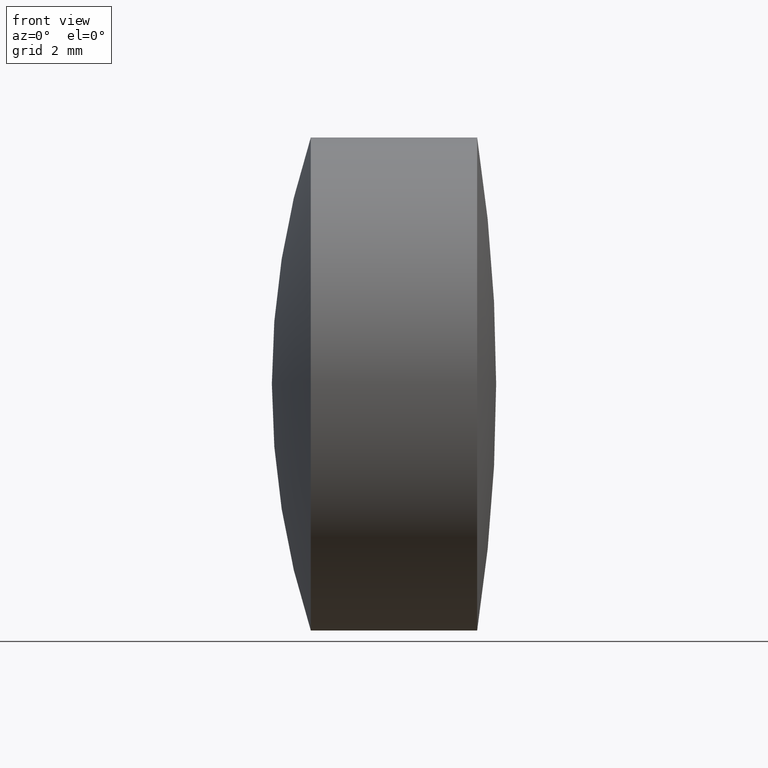
[diagram: clean part render]
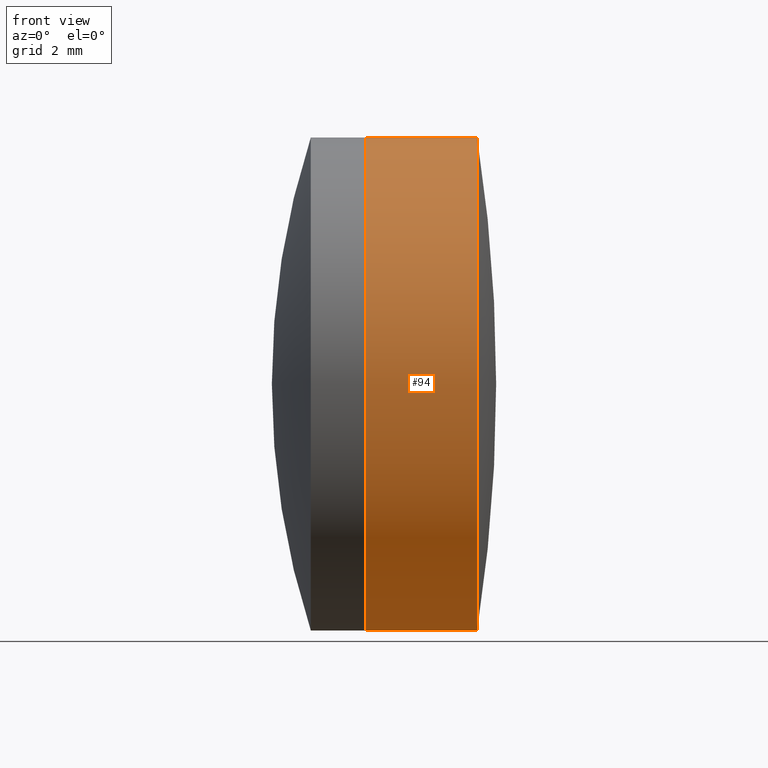
[diagram: same view with one face highlighted and labeled with its STEP entity id]
A machine part, front view. The second image highlights one B-rep face of the part: STEP entity #94.
In plain terms, the highlighted cylindrical surface (partial cylindrical patch) has radius 5 mm, axis along (-1, -0, -0).
Its self-contained STEP definition (entity closure, byte-faithful):
#19 = VERTEX_POINT ( 'NONE', #77 ) ;
#20 = VERTEX_POINT ( 'NONE', #62 ) ;
#29 = VERTEX_POINT ( 'NONE', #115 ) ;
#38 = DIRECTION ( 'NONE',  ( -1.000000000000000000, -0.0000000000000000000, -0.0000000000000000000 ) ) ;
#42 = EDGE_CURVE ( 'NONE', #20, #29, #309, .T. ) ;
#52 = EDGE_LOOP ( 'NONE', ( #202, #90, #258, #111 ) ) ;
#56 = VECTOR ( 'NONE', #60, 1000.000000000000000 ) ;
#60 = DIRECTION ( 'NONE',  ( -1.000000000000000000, -0.0000000000000000000, -0.0000000000000000000 ) ) ;
#62 = CARTESIAN_POINT ( 'NONE',  ( 5.980462902601981800, 6.123233995736762300E-016, -4.999999999999995600 ) ) ;
#68 = DIRECTION ( 'NONE',  ( -1.000000000000000000, -0.0000000000000000000, -0.0000000000000000000 ) ) ;
#77 = CARTESIAN_POINT ( 'NONE',  ( 5.980462902601981800, 0.0000000000000000000, 4.999999999999995600 ) ) ;
#81 = EDGE_CURVE ( 'NONE', #19, #347, #106, .T. ) ;
#90 = ORIENTED_EDGE ( 'NONE', *, *, #234, .T. ) ;
#93 = DIRECTION ( 'NONE',  ( 0.0000000000000000000, 0.0000000000000000000, 1.000000000000000000 ) ) ;
#94 = ADVANCED_FACE ( 'NONE', ( #326 ), #268, .T. ) ;
#98 = DIRECTION ( 'NONE',  ( 0.0000000000000000000, 0.0000000000000000000, 1.000000000000000000 ) ) ;
#106 = LINE ( 'NONE', #132, #158 ) ;
#111 = ORIENTED_EDGE ( 'NONE', *, *, #121, .F. ) ;
#113 = AXIS2_PLACEMENT_3D ( 'NONE', #180, #38, #98 ) ;
#115 = CARTESIAN_POINT ( 'NONE',  ( 3.722280238489434500, 6.123233995736763300E-016, -4.999999999999997300 ) ) ;
#121 = EDGE_CURVE ( 'NONE', #29, #347, #279, .T. ) ;
#132 = CARTESIAN_POINT ( 'NONE',  ( -0.5519199926577972300, 0.0000000000000000000, 4.999999999999997300 ) ) ;
#151 = DIRECTION ( 'NONE',  ( -1.000000000000000000, -0.0000000000000000000, -0.0000000000000000000 ) ) ;
#158 = VECTOR ( 'NONE', #151, 1000.000000000000000 ) ;
#180 = CARTESIAN_POINT ( 'NONE',  ( 5.980462902601981800, 0.0000000000000000000, 0.0000000000000000000 ) ) ;
#199 = DIRECTION ( 'NONE',  ( 0.0000000000000000000, 0.0000000000000000000, 1.000000000000000000 ) ) ;
#202 = ORIENTED_EDGE ( 'NONE', *, *, #42, .F. ) ;
#203 = CARTESIAN_POINT ( 'NONE',  ( 3.722280238489433100, 0.0000000000000000000, 0.0000000000000000000 ) ) ;
#218 = DIRECTION ( 'NONE',  ( -1.000000000000000000, -0.0000000000000000000, -0.0000000000000000000 ) ) ;
#220 = AXIS2_PLACEMENT_3D ( 'NONE', #203, #68, #93 ) ;
#223 = CARTESIAN_POINT ( 'NONE',  ( 3.722280238489434500, 0.0000000000000000000, 4.999999999999997300 ) ) ;
#228 = CARTESIAN_POINT ( 'NONE',  ( -0.5519199926577972300, 0.0000000000000000000, 0.0000000000000000000 ) ) ;
#234 = EDGE_CURVE ( 'NONE', #20, #19, #266, .T. ) ;
#258 = ORIENTED_EDGE ( 'NONE', *, *, #81, .T. ) ;
#263 = AXIS2_PLACEMENT_3D ( 'NONE', #228, #218, #199 ) ;
#266 = CIRCLE ( 'NONE', #113, 4.999999999999995600 ) ;
#268 = CYLINDRICAL_SURFACE ( 'NONE', #263, 4.999999999999997300 ) ;
#279 = CIRCLE ( 'NONE', #220, 4.999999999999999100 ) ;
#309 = LINE ( 'NONE', #328, #56 ) ;
#326 = FACE_OUTER_BOUND ( 'NONE', #52, .T. ) ;
#328 = CARTESIAN_POINT ( 'NONE',  ( -0.5519199926577972300, 6.123233995736763300E-016, -4.999999999999997300 ) ) ;
#347 = VERTEX_POINT ( 'NONE', #223 ) ;